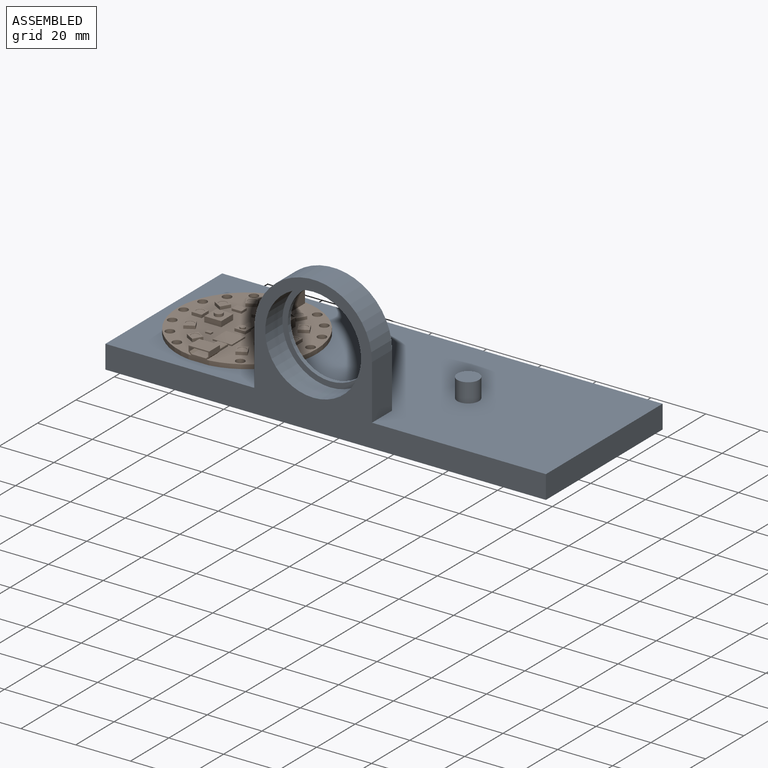
[diagram: assembled view]
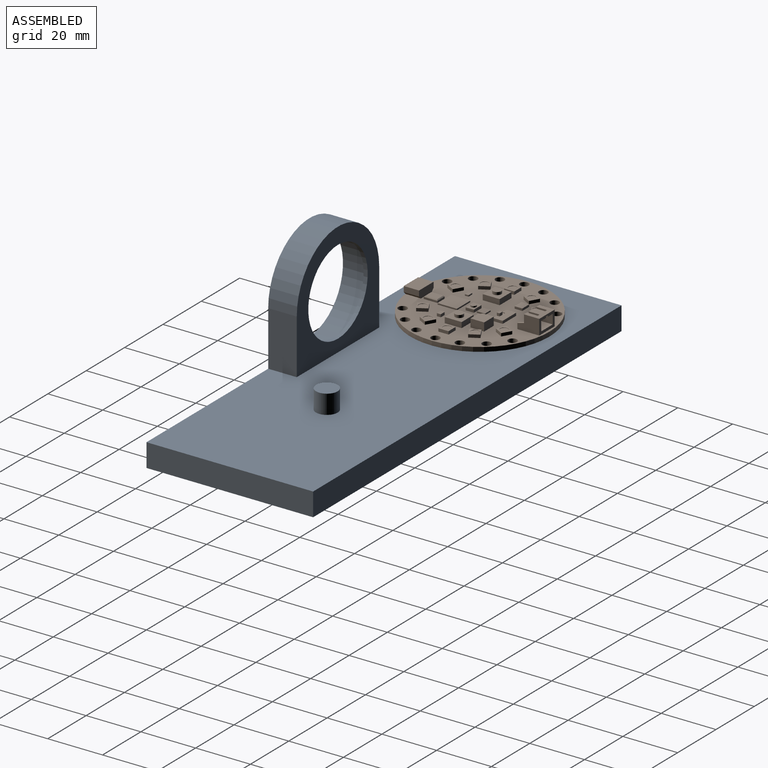
[diagram: assembled view, second angle]
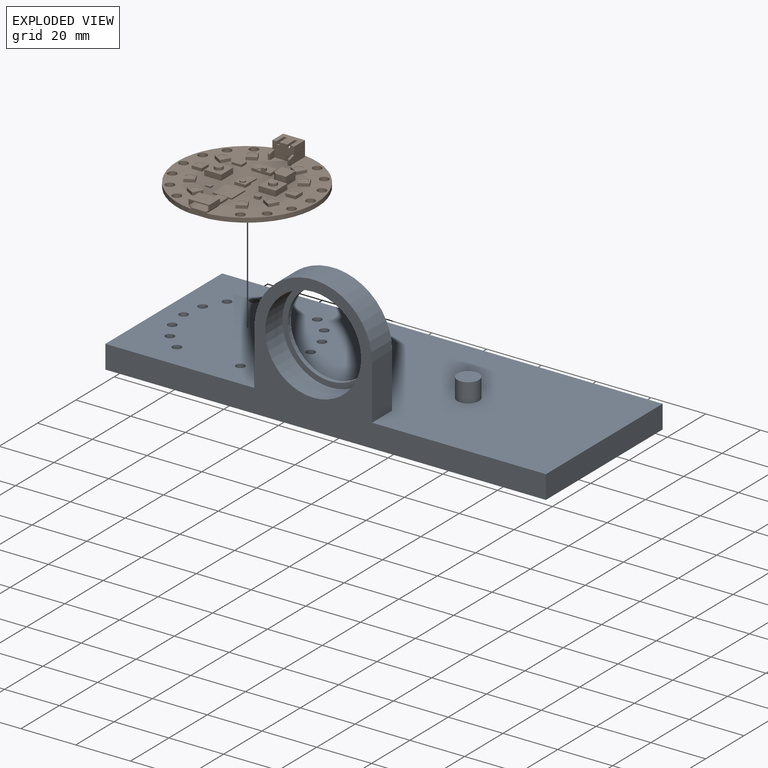
[diagram: exploded view]
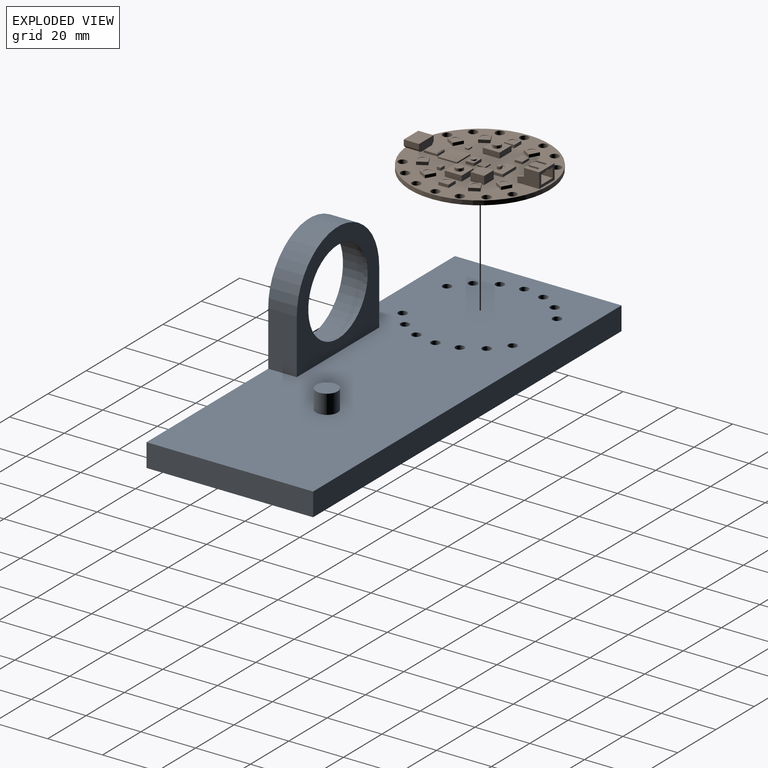
[diagram: exploded view, second angle]
ASSEMBLY  parts=2 mates=3
PART A: 127 faces, bbox 160.9x60.9x50 mm
  f0: plane 160.86x60.86mm, normal (0,0,-1), area 9440.4mm2, adj f1,f2,f3,f17,f20,f21,f22,f23
  f1: plane 60.86x8.5mm, normal (-1,0,0), area 517.3mm2, adj f0,f2,f17,f19
  f2: plane 160.86x50mm, normal (0,-1,0), area 1991.3mm2, adj f0,f1,f3,f19,f120,f121,f122,f123
  f3: plane 60.86x8.5mm, normal (1,0,0), area 517.3mm2, adj f0,f2,f17,f19
  f4: cylinder r=1.6mm len=6mm, axis (0,0,-1), area 60.3mm2, adj f19,f33
  f5: cylinder r=1.6mm len=6mm, axis (0,0,-1), area 60.3mm2, adj f19,f40
  f6: cylinder r=1.6mm len=6mm, axis (0,0,-1), area 60.3mm2, adj f19,f47
  f7: cylinder r=1.6mm len=6mm, axis (0,0,-1), area 60.3mm2, adj f19,f54
  f8: cylinder r=1.6mm len=6mm, axis (0,0,-1), area 60.3mm2, adj f19,f61
  f9: cylinder r=1.6mm len=6mm, axis (0,0,-1), area 60.3mm2, adj f19,f68
  f10: cylinder r=1.6mm len=6mm, axis (0,0,-1), area 60.3mm2, adj f19,f75
  f11: cylinder r=1.6mm len=6mm, axis (0,0,-1), area 60.3mm2, adj f19,f82
  f12: cylinder r=1.6mm len=6mm, axis (0,0,-1), area 60.3mm2, adj f19,f89
  f13: cylinder r=1.6mm len=6mm, axis (0,0,-1), area 60.3mm2, adj f19,f96
  f14: cylinder r=1.6mm len=6mm, axis (0,0,-1), area 60.3mm2, adj f19,f103
  f15: cylinder r=1.6mm len=6mm, axis (0,0,-1), area 60.3mm2, adj f19,f110
  f16: cylinder r=1.6mm len=6mm, axis (0,0,-1), area 60.3mm2, adj f19,f117
  f17: plane 160.86x8.5mm, normal (0,1,0), area 1367.3mm2, adj f0,f1,f3,f19
  f18: cylinder r=1.6mm len=6mm, axis (0,0,-1), area 60.3mm2, adj f19,f26
  f19: plane 160.86x60.86mm, normal (0,0,1), area 9179.8mm2, adj f1,f2,f3,f4,f5,f6,f7,f8
  f20: plane 2.68x2.5mm, normal (0.87,0.5,0), area 7.8mm2, adj f0,f21,f25,f26
  f21: plane 3.1x2.5mm, normal (0,1,0), area 7.8mm2, adj f0,f20,f22,f26
  f22: plane 2.68x2.5mm, normal (-0.87,0.5,0), area 7.8mm2, adj f0,f21,f23,f26
  f23: plane 2.68x2.5mm, normal (-0.87,-0.5,0), area 7.8mm2, adj f0,f22,f24,f26
  f24: plane 3.1x2.5mm, normal (0,-1,0), area 7.8mm2, adj f0,f23,f25,f26
  f25: plane 2.68x2.5mm, normal (0.87,-0.5,0), area 7.8mm2, adj f0,f20,f24,f26
  f26: plane 6.2x5.37mm, normal (0,0,-1), area 16.9mm2, adj f18,f20,f21,f22,f23,f24,f25
  f27: plane 2.68x2.5mm, normal (0.87,0.5,0), area 7.8mm2, adj f0,f28,f32,f33
  f28: plane 3.1x2.5mm, normal (0,1,0), area 7.8mm2, adj f0,f27,f29,f33
  f29: plane 2.68x2.5mm, normal (-0.87,0.5,0), area 7.8mm2, adj f0,f28,f30,f33
  f30: plane 2.68x2.5mm, normal (-0.87,-0.5,0), area 7.8mm2, adj f0,f29,f31,f33
  f31: plane 3.1x2.5mm, normal (0,-1,0), area 7.8mm2, adj f0,f30,f32,f33
  f32: plane 2.68x2.5mm, normal (0.87,-0.5,0), area 7.8mm2, adj f0,f27,f31,f33
  f33: plane 6.2x5.37mm, normal (0,0,-1), area 16.9mm2, adj f4,f27,f28,f29,f30,f31,f32
  f34: plane 2.5x2.37mm, normal (0.64,0.77,0), area 7.7mm2, adj f0,f35,f39,f40
  f35: plane 2.91x2.5mm, normal (-0.34,0.94,0), area 7.8mm2, adj f0,f34,f36,f40
  f36: plane 3.05x2.5mm, normal (-0.98,0.17,0), area 7.8mm2, adj f0,f35,f37,f40
  f37: plane 2.5x2.37mm, normal (-0.64,-0.77,0), area 7.8mm2, adj f0,f36,f38,f40
  f38: plane 2.91x2.5mm, normal (0.34,-0.94,0), area 7.8mm2, adj f0,f37,f39,f40
  f39: plane 3.05x2.5mm, normal (0.98,-0.17,0), area 7.7mm2, adj f0,f34,f38,f40
  f40: plane 6.11x5.83mm, normal (0,0,-1), area 16.9mm2, adj f5,f34,f35,f36,f37,f38,f39
  f41: plane 2.91x2.5mm, normal (0.34,0.94,0), area 7.8mm2, adj f0,f42,f46,f47
  f42: plane 2.5x2.37mm, normal (-0.64,0.77,0), area 7.8mm2, adj f0,f41,f43,f47
  f43: plane 3.05x2.5mm, normal (-0.98,-0.17,0), area 7.7mm2, adj f0,f42,f44,f47
  f44: plane 2.91x2.5mm, normal (-0.34,-0.94,0), area 7.8mm2, adj f0,f43,f45,f47
  f45: plane 2.5x2.37mm, normal (0.64,-0.77,0), area 7.7mm2, adj f0,f44,f46,f47
  f46: plane 3.05x2.5mm, normal (0.98,0.17,0), area 7.7mm2, adj f0,f41,f45,f47
  f47: plane 6.11x5.83mm, normal (0,0,-1), area 16.9mm2, adj f6,f41,f42,f43,f44,f45,f46
  f48: plane 3.1x2.5mm, normal (0,1,0), area 7.7mm2, adj f0,f49,f53,f54
  f49: plane 2.68x2.5mm, normal (-0.87,0.5,0), area 7.8mm2, adj f0,f48,f50,f54
  f50: plane 2.68x2.5mm, normal (-0.87,-0.5,0), area 7.8mm2, adj f0,f49,f51,f54
  f51: plane 3.1x2.5mm, normal (0,-1,0), area 7.7mm2, adj f0,f50,f52,f54
  f52: plane 2.68x2.5mm, normal (0.87,-0.5,0), area 7.8mm2, adj f0,f51,f53,f54
  f53: plane 2.68x2.5mm, normal (0.87,0.5,0), area 7.8mm2, adj f0,f48,f52,f54
  f54: plane 6.2x5.37mm, normal (0,0,-1), area 16.9mm2, adj f7,f48,f49,f50,f51,f52,f53
  f55: plane 2.91x2.5mm, normal (-0.34,0.94,0), area 7.7mm2, adj f0,f56,f60,f61
  f56: plane 3.05x2.5mm, normal (-0.98,0.17,0), area 7.8mm2, adj f0,f55,f57,f61
  f57: plane 2.5x2.37mm, normal (-0.64,-0.77,0), area 7.7mm2, adj f0,f56,f58,f61
  f58: plane 2.91x2.5mm, normal (0.34,-0.94,0), area 7.7mm2, adj f0,f57,f59,f61
  f59: plane 3.05x2.5mm, normal (0.98,-0.17,0), area 7.7mm2, adj f0,f58,f60,f61
  f60: plane 2.5x2.37mm, normal (0.64,0.77,0), area 7.8mm2, adj f0,f55,f59,f61
  f61: plane 6.11x5.83mm, normal (0,0,-1), area 16.9mm2, adj f8,f55,f56,f57,f58,f59,f60
  f62: plane 2.5x2.37mm, normal (-0.64,0.77,0), area 7.7mm2, adj f0,f63,f67,f68
  f63: plane 3.05x2.5mm, normal (-0.98,-0.17,0), area 7.8mm2, adj f0,f62,f64,f68
  f64: plane 2.91x2.5mm, normal (-0.34,-0.94,0), area 7.8mm2, adj f0,f63,f65,f68
  f65: plane 2.5x2.37mm, normal (0.64,-0.77,0), area 7.7mm2, adj f0,f64,f66,f68
  f66: plane 3.05x2.5mm, normal (0.98,0.17,0), area 7.7mm2, adj f0,f65,f67,f68
  f67: plane 2.91x2.5mm, normal (0.34,0.94,0), area 7.7mm2, adj f0,f62,f66,f68
  f68: plane 6.11x5.83mm, normal (0,0,-1), area 16.9mm2, adj f9,f62,f63,f64,f65,f66,f67
  f69: plane 2.68x2.5mm, normal (-0.87,0.5,0), area 7.8mm2, adj f0,f70,f74,f75
  f70: plane 2.68x2.5mm, normal (-0.87,-0.5,0), area 7.8mm2, adj f0,f69,f71,f75
  f71: plane 3.1x2.5mm, normal (0,-1,0), area 7.8mm2, adj f0,f70,f72,f75
  f72: plane 2.68x2.5mm, normal (0.87,-0.5,0), area 7.8mm2, adj f0,f71,f73,f75
  f73: plane 2.68x2.5mm, normal (0.87,0.5,0), area 7.8mm2, adj f0,f72,f74,f75
  f74: plane 3.1x2.5mm, normal (0,1,0), area 7.8mm2, adj f0,f69,f73,f75
  f75: plane 6.2x5.37mm, normal (0,0,-1), area 16.9mm2, adj f10,f69,f70,f71,f72,f73,f74
  f76: plane 2.68x2.5mm, normal (-0.87,-0.5,0), area 7.8mm2, adj f0,f77,f81,f82
  f77: plane 3.1x2.5mm, normal (0,-1,0), area 7.8mm2, adj f0,f76,f78,f82
  f78: plane 2.68x2.5mm, normal (0.87,-0.5,0), area 7.8mm2, adj f0,f77,f79,f82
  f79: plane 2.68x2.5mm, normal (0.87,0.5,0), area 7.8mm2, adj f0,f78,f80,f82
  f80: plane 3.1x2.5mm, normal (0,1,0), area 7.8mm2, adj f0,f79,f81,f82
  f81: plane 2.68x2.5mm, normal (-0.87,0.5,0), area 7.8mm2, adj f0,f76,f80,f82
  f82: plane 6.2x5.37mm, normal (0,0,-1), area 16.9mm2, adj f11,f76,f77,f78,f79,f80,f81
  f83: plane 2.5x2.37mm, normal (-0.64,-0.77,0), area 7.7mm2, adj f0,f84,f88,f89
  f84: plane 2.91x2.5mm, normal (0.34,-0.94,0), area 7.8mm2, adj f0,f83,f85,f89
  f85: plane 3.05x2.5mm, normal (0.98,-0.17,0), area 7.8mm2, adj f0,f84,f86,f89
  f86: plane 2.5x2.37mm, normal (0.64,0.77,0), area 7.8mm2, adj f0,f85,f87,f89
  f87: plane 2.91x2.5mm, normal (-0.34,0.94,0), area 7.8mm2, adj f0,f86,f88,f89
  f88: plane 3.05x2.5mm, normal (-0.98,0.17,0), area 7.7mm2, adj f0,f83,f87,f89
  f89: plane 6.11x5.83mm, normal (0,0,-1), area 16.9mm2, adj f12,f83,f84,f85,f86,f87,f88
  f90: plane 2.91x2.5mm, normal (-0.34,-0.94,0), area 7.8mm2, adj f0,f91,f95,f96
  f91: plane 2.5x2.37mm, normal (0.64,-0.77,0), area 7.8mm2, adj f0,f90,f92,f96
  f92: plane 3.05x2.5mm, normal (0.98,0.17,0), area 7.7mm2, adj f0,f91,f93,f96
  f93: plane 2.91x2.5mm, normal (0.34,0.94,0), area 7.8mm2, adj f0,f92,f94,f96
  f94: plane 2.5x2.37mm, normal (-0.64,0.77,0), area 7.7mm2, adj f0,f93,f95,f96
  f95: plane 3.05x2.5mm, normal (-0.98,-0.17,0), area 7.7mm2, adj f0,f90,f94,f96
  f96: plane 6.11x5.83mm, normal (0,0,-1), area 16.9mm2, adj f13,f90,f91,f92,f93,f94,f95
  f97: plane 3.1x2.5mm, normal (0,-1,0), area 7.7mm2, adj f0,f98,f102,f103
  f98: plane 2.68x2.5mm, normal (0.87,-0.5,0), area 7.8mm2, adj f0,f97,f99,f103
  f99: plane 2.68x2.5mm, normal (0.87,0.5,0), area 7.8mm2, adj f0,f98,f100,f103
  f100: plane 3.1x2.5mm, normal (0,1,0), area 7.7mm2, adj f0,f99,f101,f103
  f101: plane 2.68x2.5mm, normal (-0.87,0.5,0), area 7.8mm2, adj f0,f100,f102,f103
  f102: plane 2.68x2.5mm, normal (-0.87,-0.5,0), area 7.8mm2, adj f0,f97,f101,f103
  f103: plane 6.2x5.37mm, normal (0,0,-1), area 16.9mm2, adj f14,f97,f98,f99,f100,f101,f102
  f104: plane 2.91x2.5mm, normal (0.34,-0.94,0), area 7.7mm2, adj f0,f105,f109,f110
  f105: plane 3.05x2.5mm, normal (0.98,-0.17,0), area 7.8mm2, adj f0,f104,f106,f110
  f106: plane 2.5x2.37mm, normal (0.64,0.77,0), area 7.7mm2, adj f0,f105,f107,f110
  f107: plane 2.91x2.5mm, normal (-0.34,0.94,0), area 7.7mm2, adj f0,f106,f108,f110
  f108: plane 3.05x2.5mm, normal (-0.98,0.17,0), area 7.7mm2, adj f0,f107,f109,f110
  f109: plane 2.5x2.37mm, normal (-0.64,-0.77,0), area 7.8mm2, adj f0,f104,f108,f110
  f110: plane 6.11x5.83mm, normal (0,0,-1), area 16.9mm2, adj f15,f104,f105,f106,f107,f108,f109
  f111: plane 2.5x2.37mm, normal (0.64,-0.77,0), area 7.7mm2, adj f0,f112,f116,f117
  f112: plane 3.05x2.5mm, normal (0.98,0.17,0), area 7.8mm2, adj f0,f111,f113,f117
  f113: plane 2.91x2.5mm, normal (0.34,0.94,0), area 7.8mm2, adj f0,f112,f114,f117
  f114: plane 2.5x2.37mm, normal (-0.64,0.77,0), area 7.7mm2, adj f0,f113,f115,f117
  f115: plane 3.05x2.5mm, normal (-0.98,-0.17,0), area 7.7mm2, adj f0,f114,f116,f117
  f116: plane 2.91x2.5mm, normal (-0.34,-0.94,0), area 7.7mm2, adj f0,f111,f115,f117
  f117: plane 6.11x5.83mm, normal (0,0,-1), area 16.9mm2, adj f16,f111,f112,f113,f114,f115,f116
  f118: cylinder r=3.95mm len=7.9mm, axis (0,0,-1), area 173.7mm2, adj f19,f119
  f119: plane 7.9x7.9mm, normal (0,0,1), area 49mm2, adj f118
  f120: plane 20x10.43mm, normal (-1,0,0), area 208.6mm2, adj f2,f19,f122,f124
  f121: plane 20x10.43mm, normal (1,0,0), area 208.6mm2, adj f2,f19,f122,f124
  f122: cylinder r=21.5mm len=43mm, axis (0,1,0), area 704.5mm2, adj f2,f120,f121,f124
  f123: cylinder r=17.5mm len=35mm, axis (0,1,0), area 981.9mm2, adj f2,f126
  f124: plane 43x41.5mm, normal (0,1,0), area 831.3mm2, adj f19,f120,f121,f122,f125
  f125: cylinder r=15.5mm len=31mm, axis (0,1,0), area 146.1mm2, adj f124,f126
  f126: plane 35x35mm, normal (0,-1,0), area 207.3mm2, adj f123,f125
PART B: 202 faces, bbox 50.9x50.6x7.1 mm
  f0: plane 50.86x50.58mm, normal (0,0,1), area 1470.2mm2, adj f1,f2,f3,f4,f5,f6,f7,f8
  f1: cylinder r=1.6mm len=3.2mm, axis (0,0,-1), area 16.1mm2, adj f0,f17
  f2: cylinder r=1.6mm len=3.2mm, axis (0,0,-1), area 16.1mm2, adj f0,f17
  f3: cylinder r=1.6mm len=3.2mm, axis (0,0,-1), area 16.1mm2, adj f0,f17
  f4: cylinder r=1.6mm len=3.2mm, axis (0,0,-1), area 16.1mm2, adj f0,f17
  f5: cylinder r=1.6mm len=3.2mm, axis (0,0,-1), area 16.1mm2, adj f0,f17
  f6: cylinder r=1.6mm len=3.2mm, axis (0,0,-1), area 16.1mm2, adj f0,f17
  f7: cylinder r=1.6mm len=3.2mm, axis (0,0,-1), area 16.1mm2, adj f0,f17
  f8: cylinder r=1.6mm len=3.2mm, axis (0,0,-1), area 16.1mm2, adj f0,f17
  f9: cylinder r=1.6mm len=3.2mm, axis (0,0,-1), area 16.1mm2, adj f0,f17
  f10: cylinder r=1.6mm len=3.2mm, axis (0,0,-1), area 16.1mm2, adj f0,f17
  f11: cylinder r=1.6mm len=3.2mm, axis (0,0,-1), area 16.1mm2, adj f0,f17
  f12: cylinder r=1.6mm len=3.2mm, axis (0,0,-1), area 16.1mm2, adj f0,f17
  f13: cylinder r=1.6mm len=3.2mm, axis (0,0,-1), area 16.1mm2, adj f0,f17
  f14: cylinder r=1.6mm len=3.2mm, axis (0,0,-1), area 16.1mm2, adj f0,f17
  f15: plane 7.6x4.6mm, normal (0,-1,0), area 19.5mm2, adj f0,f16,f17,f18,f19,f21,f22,f23
  f16: cylinder r=25.43mm len=50.86mm, axis (0,0,-1), area 243.6mm2, adj f0,f15,f17
  f17: plane 50.86x50.58mm, normal (0,0,-1), area 1917.6mm2, adj f1,f2,f3,f4,f5,f6,f7,f8
  f18: plane 5.2x0.77mm, normal (-0.71,0,0.71), area 5.6mm2, adj f15,f19,f20,f24
  f19: plane 5.2x1.43mm, normal (-1,0,0), area 7.5mm2, adj f15,f18,f20,f23
  f20: plane 6.8x2.2mm, normal (0,-1,0), area 14.4mm2, adj f18,f19,f21,f22,f23,f24
  f21: plane 5.2x0.77mm, normal (0.71,0,0.71), area 5.6mm2, adj f15,f20,f22,f24
  f22: plane 5.2x1.43mm, normal (1,0,0), area 7.5mm2, adj f15,f20,f21,f23
  f23: plane 6.8x5.2mm, normal (0,0,-1), area 35.4mm2, adj f15,f19,f20,f22
  f24: plane 5.27x5.2mm, normal (0,0,1), area 27.4mm2, adj f15,f18,f20,f21
  f25: plane 5.6x1mm, normal (0.71,0,-0.71), area 7.9mm2, adj f0,f15,f26,f27
  f26: plane 5.6x2mm, normal (1,0,0), area 11.2mm2, adj f15,f25,f27,f30
  f27: plane 7.6x3mm, normal (0,1,0), area 21.8mm2, adj f0,f25,f26,f28,f29,f30
  f28: plane 5.6x1mm, normal (-0.71,0,-0.71), area 7.9mm2, adj f0,f15,f27,f29
  f29: plane 5.6x2mm, normal (-1,0,0), area 11.2mm2, adj f15,f27,f28,f30
  f30: plane 7.6x5.6mm, normal (0,0,1), area 42.6mm2, adj f15,f26,f27,f29
  f31: plane 5x2.5mm, normal (0,0,-1), area 9.2mm2, adj f33,f38,f39,f40,f42,f43,f55
  f32: plane 5x2.5mm, normal (0,0,-1), area 9.2mm2, adj f35,f36,f39,f44,f46,f47,f55
  f33: plane 5x0.5mm, normal (1,0,0), area 2.5mm2, adj f31,f34,f39,f55
  f34: plane 5x1mm, normal (0,0,-1), area 5mm2, adj f33,f35,f39,f55
  f35: plane 5x0.5mm, normal (-1,0,0), area 2.5mm2, adj f32,f34,f39,f55
  f36: plane 5x3.5mm, normal (-1,0,0), area 17.5mm2, adj f32,f37,f39,f55
  f37: plane 6x5mm, normal (0,0,1), area 30mm2, adj f36,f38,f39,f55
  f38: plane 5x3.5mm, normal (1,0,0), area 17.5mm2, adj f31,f37,f39,f55
  f39: plane 6x4mm, normal (0,1,0), area 21.5mm2, adj f31,f32,f33,f34,f35,f36,f37,f38
  f40: plane 3.93x1mm, normal (-1,0,0), area 3.9mm2, adj f31,f41,f42,f48,f58
  f41: plane 1x0.6mm, normal (0,0,1), area 0.6mm2, adj f39,f40,f43,f48
  f42: plane 1x1mm, normal (0,-1,0), area 1mm2, adj f31,f40,f43,f58
  f43: plane 3.93x1mm, normal (1,0,0), area 3.9mm2, adj f31,f41,f42,f48,f58
  f44: plane 3.93x1mm, normal (-1,0,0), area 3.9mm2, adj f32,f45,f46,f48,f58
  f45: plane 1x0.6mm, normal (0,0,1), area 0.6mm2, adj f39,f44,f47,f48
  f46: plane 1x1mm, normal (0,-1,0), area 1mm2, adj f32,f44,f47,f58
  f47: plane 3.93x1mm, normal (1,0,0), area 3.9mm2, adj f32,f45,f46,f48,f58
  f48: plane 8x5.5mm, normal (0,-1,0), area 37.8mm2, adj f0,f40,f41,f43,f44,f45,f47,f49
  f49: plane 2.64x2.4mm, normal (-1,0,0), area 5.6mm2, adj f0,f48,f50,f51
  f50: plane 2x0.8mm, normal (0,-1,0), area 1.6mm2, adj f0,f49,f51,f56
  f51: plane 2.4x0.8mm, normal (0,-0.26,0.97), area 2mm2, adj f48,f49,f50,f56
  f52: plane 2.64x2.4mm, normal (1,0,0), area 5.6mm2, adj f0,f48,f53,f54
  f53: plane 2x0.8mm, normal (0,-1,0), area 1.6mm2, adj f0,f52,f54,f57
  f54: plane 2.4x0.8mm, normal (0,-0.26,0.97), area 2mm2, adj f48,f52,f53,f57
  f55: plane 8x5.5mm, normal (0,1,0), area 22.5mm2, adj f0,f31,f32,f33,f34,f35,f36,f37
  f56: plane 8x5.5mm, normal (1,0,0), area 36.4mm2, adj f0,f48,f50,f51,f55,f58
  f57: plane 8x5.5mm, normal (-1,0,0), area 36.4mm2, adj f0,f48,f53,f54,f55,f58
  f58: plane 8x5.6mm, normal (0,0,1), area 36.9mm2, adj f40,f42,f43,f44,f46,f47,f48,f55
  f59: cylinder r=1.5mm len=3mm, axis (0,0,1), area 9.4mm2, adj f60,f65
  f60: plane 3x3mm, normal (0,0,1), area 7.1mm2, adj f59
  f61: plane 6.2x2mm, normal (1,0,0), area 12.4mm2, adj f0,f62,f64,f65
  f62: plane 6.2x2mm, normal (0,-1,0), area 12.4mm2, adj f0,f61,f63,f65
  f63: plane 6.2x2mm, normal (-1,0,0), area 12.4mm2, adj f0,f62,f64,f65
  f64: plane 6.2x2mm, normal (0,1,0), area 12.4mm2, adj f0,f61,f63,f65
  f65: plane 6.2x6.2mm, normal (0,0,1), area 31.4mm2, adj f59,f61,f62,f63,f64
  f66: cylinder r=1.5mm len=3mm, axis (0,0,-1), area 9.4mm2, adj f67,f72
  f67: plane 3x3mm, normal (0,0,1), area 7.1mm2, adj f66
  f68: plane 6.2x2mm, normal (-1,0,0), area 12.4mm2, adj f0,f69,f71,f72
  f69: plane 6.2x2mm, normal (0,-1,0), area 12.4mm2, adj f0,f68,f70,f72
  f70: plane 6.2x2mm, normal (1,0,0), area 12.4mm2, adj f0,f69,f71,f72
  f71: plane 6.2x2mm, normal (0,1,0), area 12.4mm2, adj f0,f68,f70,f72
  f72: plane 6.2x6.2mm, normal (0,0,1), area 31.4mm2, adj f66,f68,f69,f70,f71
  f73: plane 3x3mm, normal (0,0,1), area 7.1mm2, adj f74
  f74: cylinder r=1.5mm len=3mm, axis (0,0,1), area 0.9mm2, adj f73,f79
  f75: plane 3.2x1.85mm, normal (-0.5,-0.87,0), area 4.1mm2, adj f0,f76,f78,f79
  f76: plane 3.2x1.85mm, normal (-0.87,0.5,0), area 4.1mm2, adj f0,f75,f77,f79
  f77: plane 3.2x1.85mm, normal (0.5,0.87,0), area 4.1mm2, adj f0,f76,f78,f79
  f78: plane 3.2x1.85mm, normal (0.87,-0.5,0), area 4.1mm2, adj f0,f75,f77,f79
  f79: plane 5.05x5.05mm, normal (0,0,1), area 6.6mm2, adj f74,f75,f76,f77,f78
  f80: plane 3x3mm, normal (0,0,1), area 7.1mm2, adj f81
  f81: cylinder r=1.5mm len=3mm, axis (0,0,1), area 0.9mm2, adj f80,f86
  f82: plane 3.2x1.85mm, normal (-0.5,0.87,0), area 4.1mm2, adj f0,f83,f85,f86
  f83: plane 3.2x1.85mm, normal (0.87,0.5,0), area 4.1mm2, adj f0,f82,f84,f86
  f84: plane 3.2x1.85mm, normal (0.5,-0.87,0), area 4.1mm2, adj f0,f83,f85,f86
  f85: plane 3.2x1.85mm, normal (-0.87,-0.5,0), area 4.1mm2, adj f0,f82,f84,f86
  f86: plane 5.05x5.05mm, normal (0,0,1), area 6.6mm2, adj f81,f82,f83,f84,f85
  f87: plane 3x3mm, normal (0,0,1), area 7.1mm2, adj f88
  f88: cylinder r=1.5mm len=3mm, axis (0,0,1), area 0.9mm2, adj f87,f93
  f89: plane 3.7x1.1mm, normal (1,0,0), area 4.1mm2, adj f0,f90,f92,f93
  f90: plane 3.7x1.1mm, normal (0,-1,0), area 4.1mm2, adj f0,f89,f91,f93
  f91: plane 3.7x1.1mm, normal (-1,0,0), area 4.1mm2, adj f0,f90,f92,f93
  f92: plane 3.7x1.1mm, normal (0,1,0), area 4.1mm2, adj f0,f89,f91,f93
  f93: plane 3.7x3.7mm, normal (0,0,1), area 6.6mm2, adj f88,f89,f90,f91,f92
  f94: plane 3x3mm, normal (0,0,1), area 7.1mm2, adj f95
  f95: cylinder r=1.5mm len=3mm, axis (0,0,1), area 0.9mm2, adj f94,f100
  f96: plane 3.2x1.85mm, normal (-0.87,0.5,0), area 4.1mm2, adj f0,f97,f99,f100
  f97: plane 3.2x1.85mm, normal (0.5,0.87,0), area 4.1mm2, adj f0,f96,f98,f100
  f98: plane 3.2x1.85mm, normal (0.87,-0.5,0), area 4.1mm2, adj f0,f97,f99,f100
  f99: plane 3.2x1.85mm, normal (-0.5,-0.87,0), area 4.1mm2, adj f0,f96,f98,f100
  f100: plane 5.05x5.05mm, normal (0,0,1), area 6.6mm2, adj f95,f96,f97,f98,f99
  f101: plane 3x3mm, normal (0,0,1), area 7.1mm2, adj f102
  f102: cylinder r=1.5mm len=3mm, axis (0,0,1), area 0.9mm2, adj f101,f107
  f103: plane 3.2x1.85mm, normal (0.5,-0.87,0), area 4.1mm2, adj f0,f104,f106,f107
  f104: plane 3.2x1.85mm, normal (-0.87,-0.5,0), area 4.1mm2, adj f0,f103,f105,f107
  f105: plane 3.2x1.85mm, normal (-0.5,0.87,0), area 4.1mm2, adj f0,f104,f106,f107
  f106: plane 3.2x1.85mm, normal (0.87,0.5,0), area 4.1mm2, adj f0,f103,f105,f107
  f107: plane 5.05x5.05mm, normal (0,0,1), area 6.6mm2, adj f102,f103,f104,f105,f106
  f108: plane 3x3mm, normal (0,0,1), area 7.1mm2, adj f109
  f109: cylinder r=1.5mm len=3mm, axis (0,0,1), area 0.9mm2, adj f108,f114
  f110: plane 3.2x1.85mm, normal (-0.87,-0.5,0), area 4.1mm2, adj f0,f111,f113,f114
  f111: plane 3.2x1.85mm, normal (-0.5,0.87,0), area 4.1mm2, adj f0,f110,f112,f114
  f112: plane 3.2x1.85mm, normal (0.87,0.5,0), area 4.1mm2, adj f0,f111,f113,f114
  f113: plane 3.2x1.85mm, normal (0.5,-0.87,0), area 4.1mm2, adj f0,f110,f112,f114
  f114: plane 5.05x5.05mm, normal (0,0,1), area 6.6mm2, adj f109,f110,f111,f112,f113
  f115: plane 3x3mm, normal (0,0,1), area 7.1mm2, adj f116
  f116: cylinder r=1.5mm len=3mm, axis (0,0,1), area 0.9mm2, adj f115,f121
  f117: plane 3.2x1.85mm, normal (0.5,0.87,0), area 4.1mm2, adj f0,f118,f120,f121
  f118: plane 3.2x1.85mm, normal (0.87,-0.5,0), area 4.1mm2, adj f0,f117,f119,f121
  f119: plane 3.2x1.85mm, normal (-0.5,-0.87,0), area 4.1mm2, adj f0,f118,f120,f121
  f120: plane 3.2x1.85mm, normal (-0.87,0.5,0), area 4.1mm2, adj f0,f117,f119,f121
  f121: plane 5.05x5.05mm, normal (0,0,1), area 6.6mm2, adj f116,f117,f118,f119,f120
  f122: plane 3x3mm, normal (0,0,1), area 7.1mm2, adj f123
  f123: cylinder r=1.5mm len=3mm, axis (0,0,1), area 0.9mm2, adj f122,f128
  f124: plane 3.2x1.85mm, normal (0.87,0.5,0), area 4.1mm2, adj f0,f125,f127,f128
  f125: plane 3.2x1.85mm, normal (0.5,-0.87,0), area 4.1mm2, adj f0,f124,f126,f128
  f126: plane 3.2x1.85mm, normal (-0.87,-0.5,0), area 4.1mm2, adj f0,f125,f127,f128
  f127: plane 3.2x1.85mm, normal (-0.5,0.87,0), area 4.1mm2, adj f0,f124,f126,f128
  f128: plane 5.05x5.05mm, normal (0,0,1), area 6.6mm2, adj f123,f124,f125,f126,f127
  f129: plane 3x3mm, normal (0,0,1), area 7.1mm2, adj f130
  f130: cylinder r=1.5mm len=3mm, axis (0,0,1), area 0.9mm2, adj f129,f135
  f131: plane 3.7x1.1mm, normal (-1,0,0), area 4.1mm2, adj f0,f132,f134,f135
  f132: plane 3.7x1.1mm, normal (0,1,0), area 4.1mm2, adj f0,f131,f133,f135
  f133: plane 3.7x1.1mm, normal (1,0,0), area 4.1mm2, adj f0,f132,f134,f135
  f134: plane 3.7x1.1mm, normal (0,-1,0), area 4.1mm2, adj f0,f131,f133,f135
  f135: plane 3.7x3.7mm, normal (0,0,1), area 6.6mm2, adj f130,f131,f132,f133,f134
  f136: plane 3x3mm, normal (0,0,1), area 7.1mm2, adj f137
  f137: cylinder r=1.5mm len=3mm, axis (0,0,1), area 0.9mm2, adj f136,f142
  f138: plane 3.2x1.85mm, normal (0.87,-0.5,0), area 4.1mm2, adj f0,f139,f141,f142
  f139: plane 3.2x1.85mm, normal (-0.5,-0.87,0), area 4.1mm2, adj f0,f138,f140,f142
  f140: plane 3.2x1.85mm, normal (-0.87,0.5,0), area 4.1mm2, adj f0,f139,f141,f142
  f141: plane 3.2x1.85mm, normal (0.5,0.87,0), area 4.1mm2, adj f0,f138,f140,f142
  f142: plane 5.05x5.05mm, normal (0,0,1), area 6.6mm2, adj f137,f138,f139,f140,f141
  f143: plane 1x1mm, normal (1,0,0), area 1mm2, adj f144,f146,f150,f154
  f144: plane 1.5x1mm, normal (0,1,0), area 1.5mm2, adj f143,f145,f146,f150
  f145: plane 1.2x1mm, normal (-1,0,0), area 1.2mm2, adj f144,f146,f147,f149,f154
  f146: plane 1.5x1mm, normal (0,0,1), area 1.5mm2, adj f143,f144,f145,f154
  f147: plane 1.5x1mm, normal (0,0,1), area 1.5mm2, adj f145,f148,f149,f154
  f148: plane 1x0.2mm, normal (1,0,0), area 0.2mm2, adj f147,f149,f150,f154
  f149: plane 1.5x0.2mm, normal (0,-1,0), area 0.3mm2, adj f145,f147,f148,f150
  f150: plane 7x3.55mm, normal (0,0,1), area 21.9mm2, adj f143,f144,f148,f149,f151,f152,f153,f154
  f151: plane 3.55x1mm, normal (-1,0,0), area 3.6mm2, adj f0,f150,f152,f154
  f152: plane 7x1mm, normal (0,1,0), area 7mm2, adj f0,f150,f151,f153
  f153: plane 3.55x1mm, normal (1,0,0), area 3.6mm2, adj f0,f150,f152,f154
  f154: plane 7x2mm, normal (0,-1,0), area 8.2mm2, adj f0,f143,f145,f146,f147,f148,f150,f151
  f155: plane 3x1.1mm, normal (-0.71,-0.71,0), area 4.7mm2, adj f0,f156,f157,f158
  f156: plane 5x5mm, normal (0,0,1), area 24.4mm2, adj f155,f157,f158,f159,f160
  f157: plane 3.9x3mm, normal (0,-1,0), area 11.7mm2, adj f0,f155,f156,f160
  f158: plane 3.9x3mm, normal (-1,0,0), area 11.7mm2, adj f0,f155,f156,f159
  f159: plane 5x3mm, normal (0,1,0), area 15mm2, adj f0,f156,f158,f160
  f160: plane 5x3mm, normal (1,0,0), area 15mm2, adj f0,f156,f157,f159
  f161: plane 2.8x0.8mm, normal (1,0,0), area 2.2mm2, adj f0,f162,f164,f165
  f162: plane 3.56x0.8mm, normal (0,-1,0), area 2.8mm2, adj f0,f161,f163,f165
  f163: plane 2.8x0.8mm, normal (-1,0,0), area 2.2mm2, adj f0,f162,f164,f165
  f164: plane 3.56x0.8mm, normal (0,1,0), area 2.8mm2, adj f0,f161,f163,f165
  f165: plane 3.56x2.8mm, normal (0,0,1), area 10mm2, adj f161,f162,f163,f164
  f166: cylinder r=1mm len=2mm, axis (0,0,1), area 3.1mm2, adj f167,f172
  f167: plane 2x2mm, normal (0,0,1), area 3.1mm2, adj f166
  f168: plane 3x1mm, normal (1,0,0), area 3mm2, adj f0,f169,f171,f172
  f169: plane 4x1mm, normal (0,-1,0), area 4mm2, adj f0,f168,f170,f172
  f170: plane 3x1mm, normal (-1,0,0), area 3mm2, adj f0,f169,f171,f172
  f171: plane 4x1mm, normal (0,1,0), area 4mm2, adj f0,f168,f170,f172
  f172: plane 4x3mm, normal (0,0,1), area 8.9mm2, adj f166,f168,f169,f170,f171
  f173: plane 1.4x1mm, normal (1,0,0), area 1.4mm2, adj f0,f174,f176,f177
  f174: plane 2x1mm, normal (0,-1,0), area 2mm2, adj f0,f173,f175,f177
  f175: plane 1.4x1mm, normal (-1,0,0), area 1.4mm2, adj f0,f174,f176,f177
  f176: plane 2x1mm, normal (0,1,0), area 2mm2, adj f0,f173,f175,f177
  f177: plane 2x1.4mm, normal (0,0,1), area 2.8mm2, adj f173,f174,f175,f176
  f178: plane 7x0.5mm, normal (-1,0,0), area 3.5mm2, adj f0,f179,f181,f182
  f179: plane 7x0.5mm, normal (0,1,0), area 3.5mm2, adj f0,f178,f180,f182
  f180: plane 7x0.5mm, normal (1,0,0), area 3.5mm2, adj f0,f179,f181,f182
  f181: plane 7x0.5mm, normal (0,-1,0), area 3.5mm2, adj f0,f178,f180,f182
  f182: plane 7x7mm, normal (0,0,1), area 49mm2, adj f178,f179,f180,f181
  f183: plane 5x0.3mm, normal (-0.71,0,0.71), area 2mm2, adj f184,f186,f188,f189
  f184: plane 3.8x0.3mm, normal (0,0.71,0.71), area 1.5mm2, adj f183,f185,f189,f190
  f185: plane 5x0.3mm, normal (0.71,0,0.71), area 2mm2, adj f184,f186,f189,f191
  f186: plane 3.8x0.3mm, normal (0,-0.71,0.71), area 1.5mm2, adj f183,f185,f187,f189
  f187: plane 3.8x0.7mm, normal (0,-1,0), area 2.7mm2, adj f0,f186,f188,f191
  f188: plane 5x0.7mm, normal (-1,0,0), area 3.5mm2, adj f0,f183,f187,f190
  f189: plane 4.4x3.2mm, normal (0,0,1), area 14.1mm2, adj f183,f184,f185,f186
  f190: plane 3.8x0.7mm, normal (0,1,0), area 2.7mm2, adj f0,f184,f188,f191
  f191: plane 5x0.7mm, normal (1,0,0), area 3.5mm2, adj f0,f185,f187,f190
  f192: plane 3x0.5mm, normal (-1,0,0), area 1.5mm2, adj f0,f193,f195,f196
  f193: plane 3x0.5mm, normal (0,1,0), area 1.5mm2, adj f0,f192,f194,f196
  f194: plane 3x0.5mm, normal (1,0,0), area 1.5mm2, adj f0,f193,f195,f196
  f195: plane 3x0.5mm, normal (0,-1,0), area 1.5mm2, adj f0,f192,f194,f196
  f196: plane 3x3mm, normal (0,0,1), area 9mm2, adj f192,f193,f194,f195
  f197: plane 1.3x0.5mm, normal (-1,0,0), area 0.7mm2, adj f0,f198,f200,f201
  f198: plane 2x0.5mm, normal (0,1,0), area 1mm2, adj f0,f197,f199,f201
  f199: plane 1.3x0.5mm, normal (1,0,0), area 0.7mm2, adj f0,f198,f200,f201
  f200: plane 2x0.5mm, normal (0,-1,0), area 1mm2, adj f0,f197,f199,f201
  f201: plane 2x1.3mm, normal (0,0,1), area 2.6mm2, adj f197,f198,f199,f200
PLACE A t=(-25.3,14.06,-8.05)mm fixed
PLACE B t=(-25.3,14.06,-8.05)mm
MATE revolute A.f10 <-> B.f10  axis (0,0,1) through (-13.71,34.14,0.45)mm
MATE revolute A.f18 <-> B.f11  axis (0,0,1) through (-36.89,-6.01,0.45)mm
MATE planar B.f16 <-> A.f19  axis (0,0,-1) through (-25.3,14.06,0.45)mm
